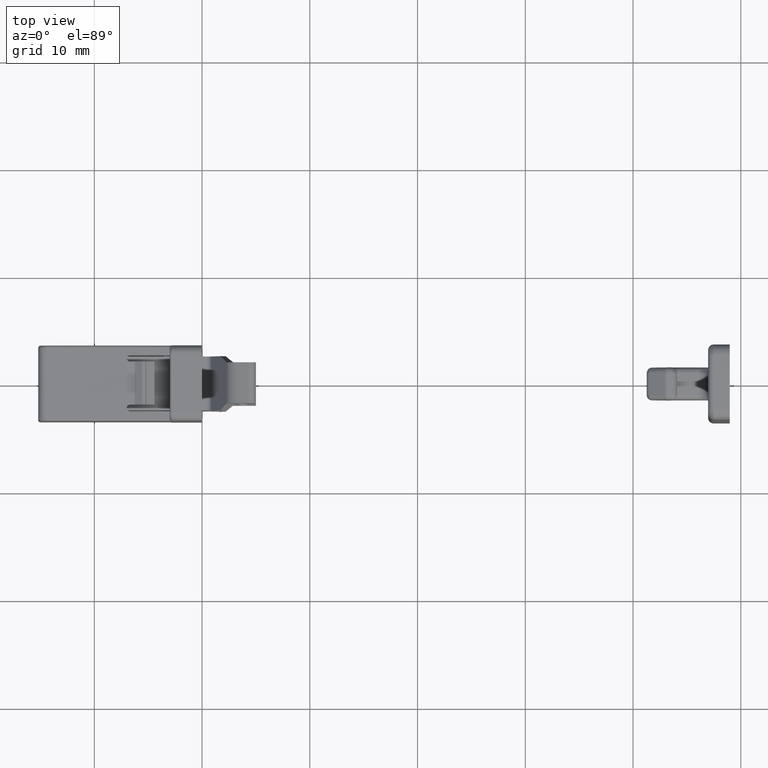
[diagram: clean part render]
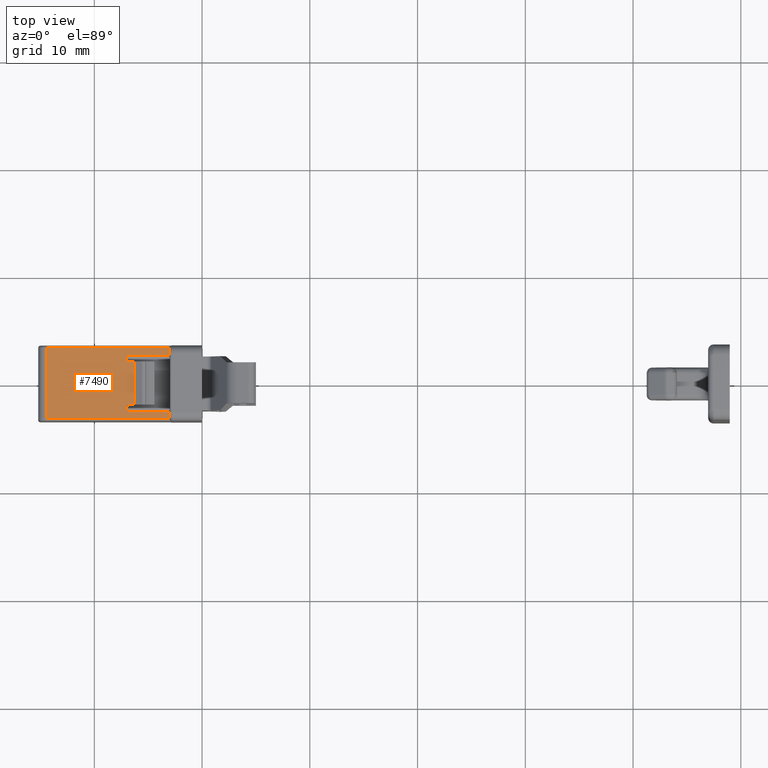
[diagram: same view with one face highlighted and labeled with its STEP entity id]
A machine part, top view. The second image highlights one B-rep face of the part: STEP entity #7490.
In plain terms, the highlighted face is a freeform B-spline surface patch.
Its self-contained STEP definition (entity closure, byte-faithful):
#4069=CARTESIAN_POINT('',(-3.0,-3.300000000000000,4.0));
#4070=VERTEX_POINT('',#4069);
#4301=CARTESIAN_POINT('',(-3.0,3.300000000000080,4.0));
#4302=VERTEX_POINT('',#4301);
#4782=CARTESIAN_POINT('',(-14.449999999999999,3.300000000000080,4.0));
#4783=VERTEX_POINT('',#4782);
#4843=CARTESIAN_POINT('',(-3.0,3.300000000000080,4.0));
#4844=CARTESIAN_POINT('',(-14.449999999999999,3.300000000000080,4.0));
#4845=QUASI_UNIFORM_CURVE('',1,(#4843,#4844),.UNSPECIFIED.,.F.,.U.);
#4846=EDGE_CURVE('',#4302,#4783,#4845,.T.);
#5031=CARTESIAN_POINT('',(-14.449999999999999,-3.300000000000000,4.0));
#5032=VERTEX_POINT('',#5031);
#5096=CARTESIAN_POINT('',(-14.449999999999999,-3.300000000000000,4.0));
#5097=CARTESIAN_POINT('',(-3.0,-3.300000000000000,4.0));
#5098=QUASI_UNIFORM_CURVE('',1,(#5096,#5097),.UNSPECIFIED.,.F.,.U.);
#5099=EDGE_CURVE('',#5032,#4070,#5098,.T.);
#6116=CARTESIAN_POINT('',(-6.242820000000000,-2.0,3.999999999999901));
#6117=VERTEX_POINT('',#6116);
#6130=CARTESIAN_POINT('',(-6.242820000000000,2.0,3.999999999999901));
#6131=VERTEX_POINT('',#6130);
#6137=CARTESIAN_POINT('',(-6.242820000000000,2.0,3.999999999999901));
#6138=CARTESIAN_POINT('',(-6.242820000000000,-2.0,3.999999999999901));
#6139=QUASI_UNIFORM_CURVE('',1,(#6137,#6138),.UNSPECIFIED.,.F.,.U.);
#6140=EDGE_CURVE('',#6131,#6117,#6139,.T.);
#6563=CARTESIAN_POINT('',(-6.700000000000000,-2.600000000000000,4.0));
#6564=VERTEX_POINT('',#6563);
#6570=CARTESIAN_POINT('',(-3.0,-2.599999999999935,4.0));
#6571=VERTEX_POINT('',#6570);
#6572=CARTESIAN_POINT('',(-6.700000000000000,-2.600000000000000,4.0));
#6573=CARTESIAN_POINT('',(-3.0,-2.599999999999935,4.0));
#6574=QUASI_UNIFORM_CURVE('',1,(#6572,#6573),.UNSPECIFIED.,.F.,.U.);
#6575=EDGE_CURVE('',#6564,#6571,#6574,.T.);
#6591=CARTESIAN_POINT('',(-3.0,2.600000000000000,4.0));
#6592=VERTEX_POINT('',#6591);
#6598=CARTESIAN_POINT('',(-6.700000000000000,2.600000000000000,4.0));
#6599=VERTEX_POINT('',#6598);
#6600=CARTESIAN_POINT('',(-3.0,2.600000000000000,4.0));
#6601=CARTESIAN_POINT('',(-6.700000000000000,2.600000000000000,4.0));
#6602=QUASI_UNIFORM_CURVE('',1,(#6600,#6601),.UNSPECIFIED.,.F.,.U.);
#6603=EDGE_CURVE('',#6592,#6599,#6602,.T.);
#6634=CARTESIAN_POINT('',(-6.700000000000000,2.0,4.0));
#6635=VERTEX_POINT('',#6634);
#6636=CARTESIAN_POINT('',(-6.700000000000000,2.0,4.0));
#6637=CARTESIAN_POINT('',(-6.999999999999999,2.0,4.0));
#6638=CARTESIAN_POINT('',(-7.0,2.300000000000000,4.0));
#6639=CARTESIAN_POINT('',(-6.999999999999999,2.600000000000001,4.0));
#6640=CARTESIAN_POINT('',(-6.700000000000000,2.600000000000000,4.0));
#6648=(BOUNDED_CURVE()B_SPLINE_CURVE(2,(#6636,#6637,#6638,#6639,#6640),.UNSPECIFIED.,.F.,.U.)B_SPLINE_CURVE_WITH_KNOTS((3,2,3),(0.0,0.500000000000000,1.0),.UNSPECIFIED.)CURVE()GEOMETRIC_REPRESENTATION_ITEM()RATIONAL_B_SPLINE_CURVE((1.0,0.707106781186547,1.0,0.707106781186547,1.0))REPRESENTATION_ITEM(''));
#6649=EDGE_CURVE('',#6635,#6599,#6648,.T.);
#6769=CARTESIAN_POINT('',(-6.700000000000000,-2.0,4.0));
#6770=VERTEX_POINT('',#6769);
#6776=CARTESIAN_POINT('',(-6.700000000000000,-2.600000000000000,4.0));
#6777=CARTESIAN_POINT('',(-6.999999999999999,-2.600000000000001,4.0));
#6778=CARTESIAN_POINT('',(-7.0,-2.300000000000000,4.0));
#6779=CARTESIAN_POINT('',(-6.999999999999999,-2.0,4.0));
#6780=CARTESIAN_POINT('',(-6.700000000000000,-2.0,4.0));
#6788=(BOUNDED_CURVE()B_SPLINE_CURVE(2,(#6776,#6777,#6778,#6779,#6780),.UNSPECIFIED.,.F.,.U.)B_SPLINE_CURVE_WITH_KNOTS((3,2,3),(0.0,0.500000000000000,1.0),.UNSPECIFIED.)CURVE()GEOMETRIC_REPRESENTATION_ITEM()RATIONAL_B_SPLINE_CURVE((1.0,0.707106781186547,1.0,0.707106781186547,1.0))REPRESENTATION_ITEM(''));
#6789=EDGE_CURVE('',#6564,#6770,#6788,.T.);
#6819=CARTESIAN_POINT('',(-6.700000000000000,2.0,4.0));
#6820=CARTESIAN_POINT('',(-6.242820000000000,2.0,3.999999999999901));
#6821=QUASI_UNIFORM_CURVE('',1,(#6819,#6820),.UNSPECIFIED.,.F.,.U.);
#6822=EDGE_CURVE('',#6635,#6131,#6821,.T.);
#6881=CARTESIAN_POINT('',(-6.242820000000000,-2.0,3.999999999999901));
#6882=CARTESIAN_POINT('',(-6.700000000000000,-2.0,4.0));
#6883=QUASI_UNIFORM_CURVE('',1,(#6881,#6882),.UNSPECIFIED.,.F.,.U.);
#6884=EDGE_CURVE('',#6117,#6770,#6883,.T.);
#6977=CARTESIAN_POINT('',(-14.449999999999999,3.300000000000080,4.0));
#6978=CARTESIAN_POINT('',(-14.449999999999999,-3.300000000000000,4.0));
#6979=QUASI_UNIFORM_CURVE('',1,(#6977,#6978),.UNSPECIFIED.,.F.,.U.);
#6980=EDGE_CURVE('',#4783,#5032,#6979,.T.);
#7376=CARTESIAN_POINT('',(-3.0,-2.599999999999935,4.0));
#7377=CARTESIAN_POINT('',(-3.0,-3.300000000000000,4.0));
#7378=QUASI_UNIFORM_CURVE('',1,(#7376,#7377),.UNSPECIFIED.,.F.,.U.);
#7379=EDGE_CURVE('',#6571,#4070,#7378,.T.);
#7386=CARTESIAN_POINT('',(-3.0,3.300000000000080,4.0));
#7387=CARTESIAN_POINT('',(-3.0,2.600000000000000,4.0));
#7388=QUASI_UNIFORM_CURVE('',1,(#7386,#7387),.UNSPECIFIED.,.F.,.U.);
#7389=EDGE_CURVE('',#4302,#6592,#7388,.T.);
#7471=CARTESIAN_POINT('',(-2.428072563099764,-3.629669987207924,4.0));
#7472=CARTESIAN_POINT('',(-15.021926925045349,-3.629669987207924,4.0));
#7473=CARTESIAN_POINT('',(-2.428072563099764,3.629670164233799,4.0));
#7474=CARTESIAN_POINT('',(-15.021926925045349,3.629670164233799,4.0));
#7475=B_SPLINE_SURFACE_WITH_KNOTS('',1,1,((#7471,#7473),(#7472,#7474)),.UNSPECIFIED.,.F.,.F.,.U.,(2,2),(2,2),(0.0,12.593854361945590),(0.0,7.259340151441723),.UNSPECIFIED.);
#7476=ORIENTED_EDGE('',*,*,#7389,.F.);
#7477=ORIENTED_EDGE('',*,*,#4846,.T.);
#7478=ORIENTED_EDGE('',*,*,#6980,.T.);
#7479=ORIENTED_EDGE('',*,*,#5099,.T.);
#7480=ORIENTED_EDGE('',*,*,#7379,.F.);
#7481=ORIENTED_EDGE('',*,*,#6575,.F.);
#7482=ORIENTED_EDGE('',*,*,#6789,.T.);
#7483=ORIENTED_EDGE('',*,*,#6884,.F.);
#7484=ORIENTED_EDGE('',*,*,#6140,.F.);
#7485=ORIENTED_EDGE('',*,*,#6822,.F.);
#7486=ORIENTED_EDGE('',*,*,#6649,.T.);
#7487=ORIENTED_EDGE('',*,*,#6603,.F.);
#7488=EDGE_LOOP('',(#7476,#7477,#7478,#7479,#7480,#7481,#7482,#7483,#7484,#7485,#7486,#7487));
#7489=FACE_OUTER_BOUND('',#7488,.T.);
#7490=ADVANCED_FACE('',(#7489),#7475,.F.);